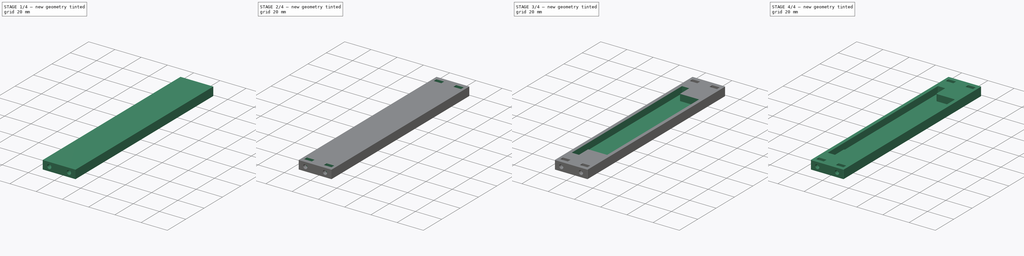
[diagram: build sequence overview — one tinted view per stage of 4, left to right]
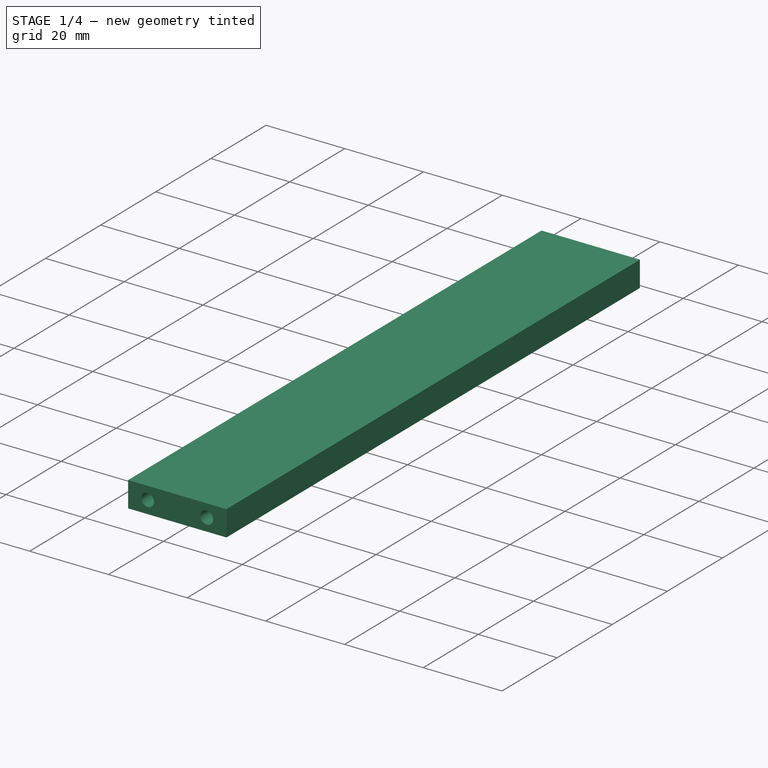
[diagram: stage 1 of 4 — iso view after this stage's code; geometry added in this stage tinted green]
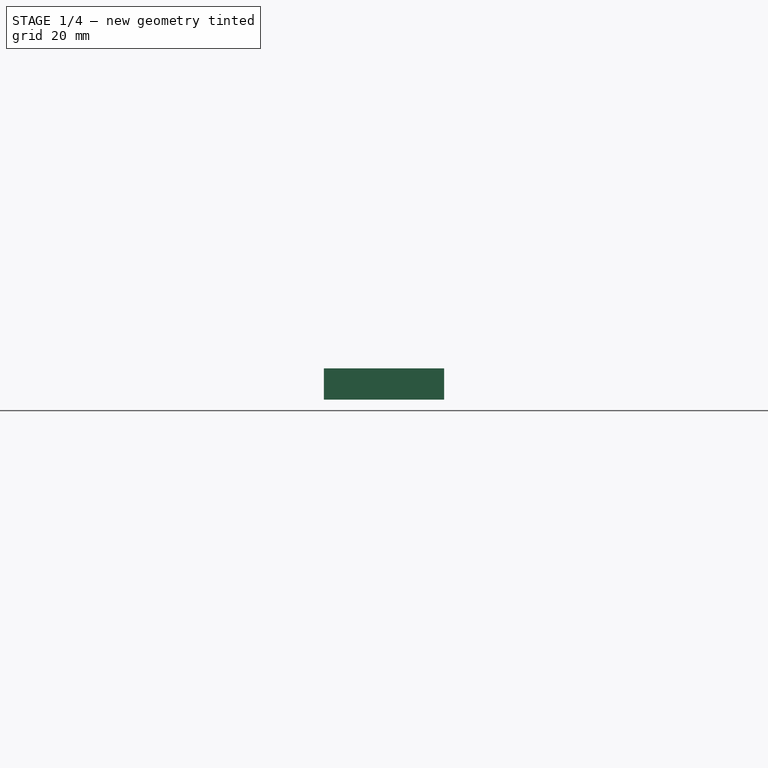
[diagram: stage 1 of 4 — front view after this stage's code; geometry added in this stage tinted green]
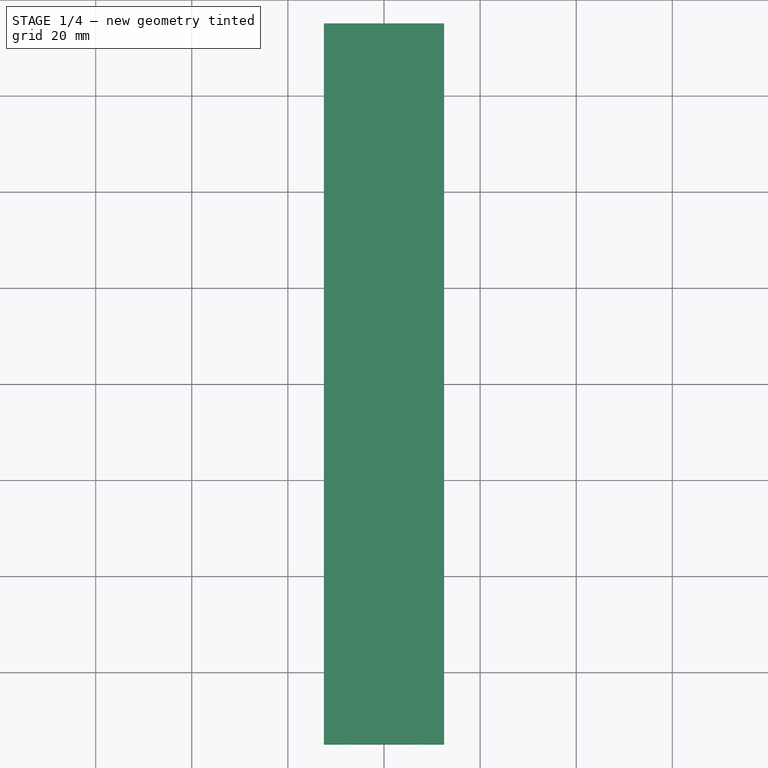
[diagram: stage 1 of 4 — top view after this stage's code; geometry added in this stage tinted green]
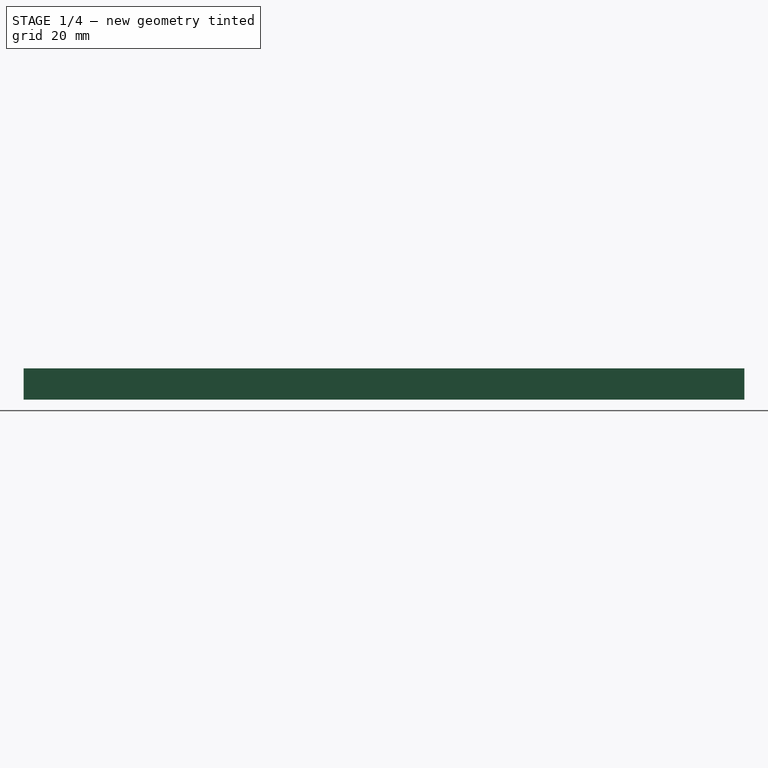
[diagram: stage 1 of 4 — right view after this stage's code; geometry added in this stage tinted green]
FCSTD DOCUMENT  (FreeCAD 0.18R4 (GitTag))
Label: Chassis_Side
License: CreativeCommons Attribution-NonCommercial
LicenseURL: http://creativecommons.org/licenses/by-nc/4.0/
objects: Sketcher::SketchObject×5, PartDesign::Pocket×4, PartDesign::Fillet×4, PartDesign::Pad×1, PartDesign::Body×1
note: 20 computed .brp shape members not serialized (recipe doc carries the construction recipe); baked Part::Feature solids carry a one-line shape summary decoded from their .brp

FEATURE [Sketcher::SketchObject] Sketch
  MapMode = 5
  Support = -> [XY_Plane]
  sketch-geometry (4):
    g0: LineSegment StartX=-12.5 StartY=75 StartZ=0 EndX=12.5 EndY=75 EndZ=0
    g1: LineSegment StartX=12.5 StartY=75 StartZ=0 EndX=12.5 EndY=-75 EndZ=0
    g2: LineSegment StartX=12.5 StartY=-75 StartZ=0 EndX=-12.5 EndY=-75 EndZ=0
    g3: LineSegment StartX=-12.5 StartY=-75 StartZ=0 EndX=-12.5 EndY=75 EndZ=0
  constraints (10):
    c: Coincident(g0,g1)
    c: Coincident(g1,g2)
    c: Coincident(g2,g3)
    c: Coincident(g3,g0)
    c: Horizontal(g2)
    c: Vertical(g3)
    c: Symmetric(g0,g0,g-2)
    c: Symmetric(g1,g0,g-1)
    c: DistanceX(g0,g0) = 25
    c: DistanceY(g1,g0) = 150
FEATURE [PartDesign::Pad] Pad  label="Baseplate"
  Length = 6.5
  Length2 = 100
  Profile = -> Sketch
  Type = 0
FEATURE [Sketcher::SketchObject] Sketch001
  MapMode = 5
  Placement = pos=(0,-75,0) rot=(1,0,0;1.5708rad)
  Support = -> [Pad]
  sketch-geometry (2):
    g0: Circle CenterX=-7.5 CenterY=3.25 CenterZ=0 NormalX=0 NormalY=0 NormalZ=1 AngleXU=0 Radius=1.6
    g1: Circle CenterX=7.5 CenterY=3.25 CenterZ=0 NormalX=0 NormalY=0 NormalZ=1 AngleXU=0 Radius=1.6
  constraints (5):
    c: Symmetric(g0,g1,g-2)
    c: DistanceY(g-1,g0) = 3.25
    c: Equal(g0,g1)
    c: Radius(g1) = 1.6
    c: DistanceX(g0,g1) = 15
FEATURE [PartDesign::Pocket] Pocket  label="Screwholes Front"
  BaseFeature = -> Pad
  Length = 10
  Length2 = 100
  Profile = -> Sketch001
  Type = 0
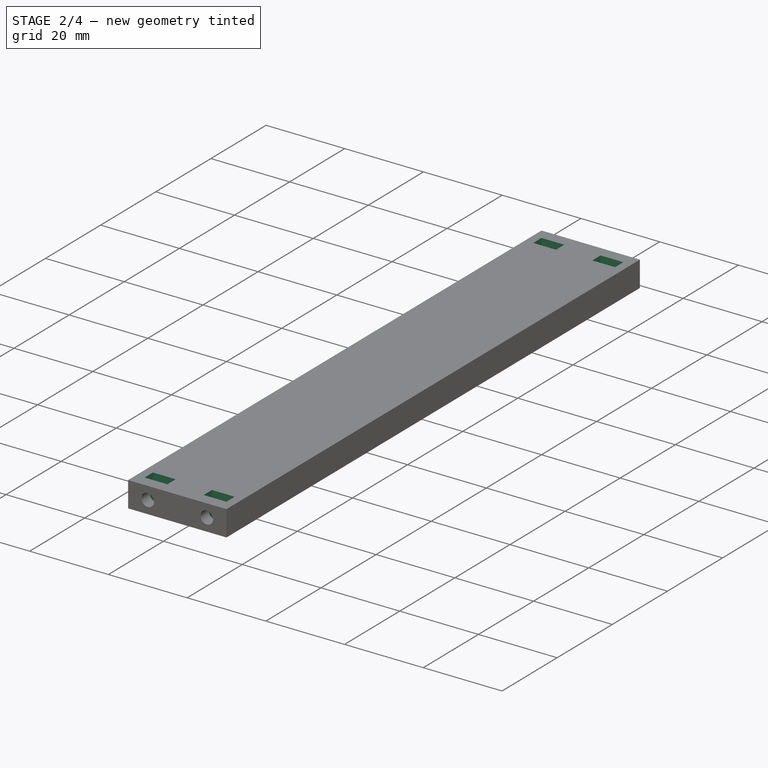
[diagram: stage 2 of 4 — iso view after this stage's code; geometry added in this stage tinted green]
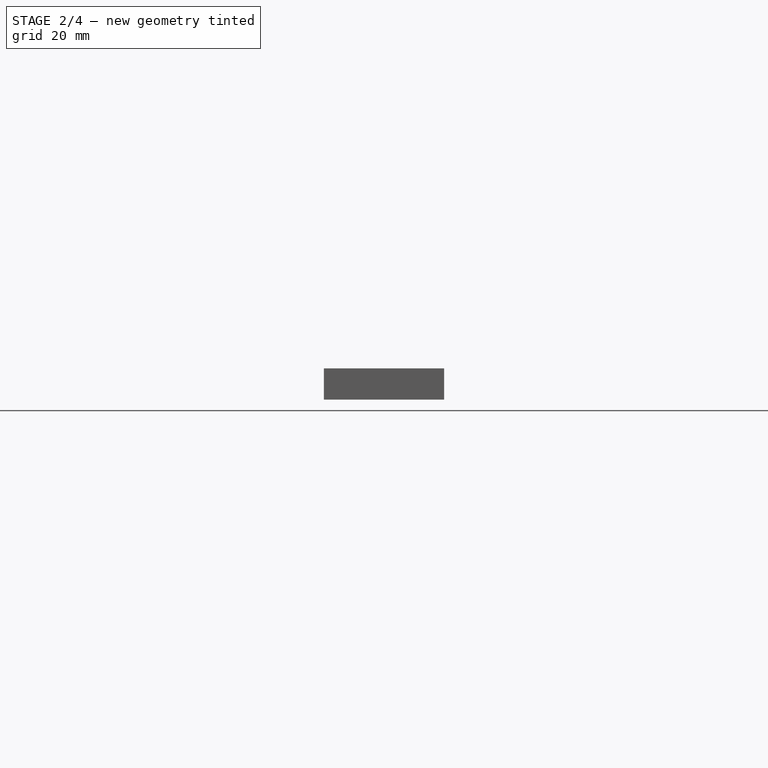
[diagram: stage 2 of 4 — front view after this stage's code; geometry added in this stage tinted green]
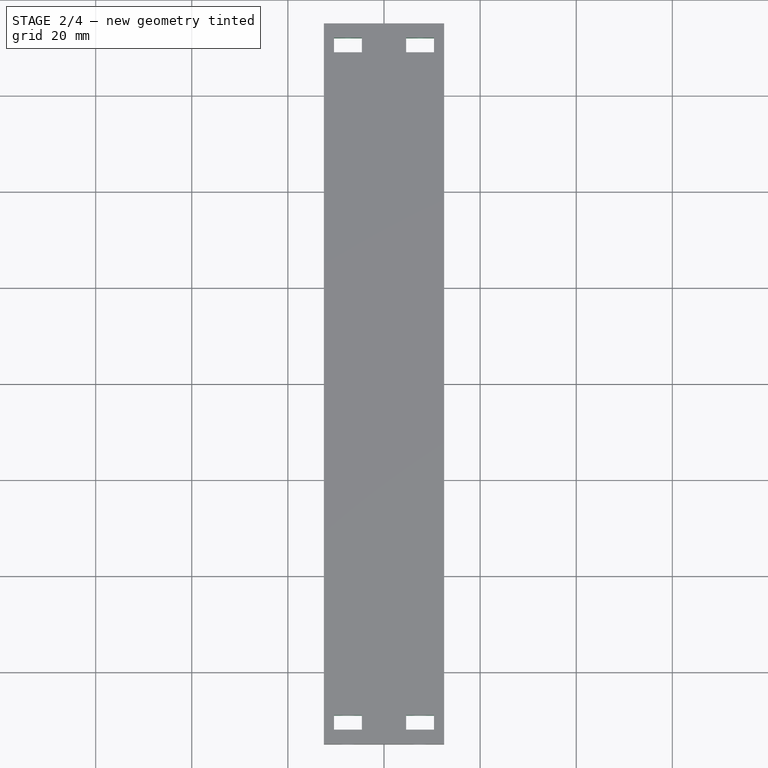
[diagram: stage 2 of 4 — top view after this stage's code; geometry added in this stage tinted green]
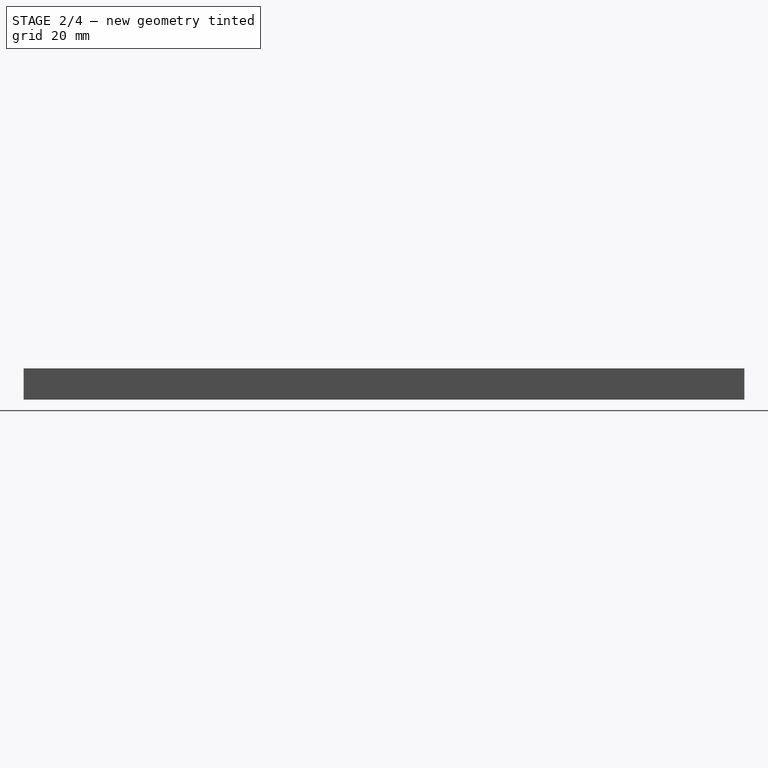
[diagram: stage 2 of 4 — right view after this stage's code; geometry added in this stage tinted green]
FEATURE [Sketcher::SketchObject] Sketch002
  MapMode = 5
  Placement = pos=(0,75,0) rot=(0,0.707107,0.707107;3.14159rad)
  Support = -> [Pocket]
  sketch-geometry (2):
    g0: Circle CenterX=-7.5 CenterY=3.25 CenterZ=0 NormalX=0 NormalY=0 NormalZ=1 AngleXU=0 Radius=1.6
    g1: Circle CenterX=7.5 CenterY=3.25 CenterZ=0 NormalX=0 NormalY=0 NormalZ=1 AngleXU=0 Radius=1.6
  constraints (5):
    c: Symmetric(g1,g0,g-2)
    c: Equal(g0,g1)
    c: DistanceY(g-1,g0) = 3.25
    c: Radius(g1) = 1.6
    c: DistanceX(g0,g1) = 15
FEATURE [PartDesign::Pocket] Pocket001  label="Screwholes Rear"
  BaseFeature = -> Pocket
  Length = 10
  Length2 = 100
  Profile = -> Sketch002
  Type = 0
FEATURE [Sketcher::SketchObject] Sketch003
  MapMode = 5
  Placement = pos=(0,0,6.5) rot=(0,0,1;0rad)
  Support = -> [Pocket001]
  sketch-geometry (16):
    g0: LineSegment StartX=-10.4 StartY=72 StartZ=0 EndX=-4.6 EndY=72 EndZ=0
    g1: LineSegment StartX=-4.6 StartY=72 StartZ=0 EndX=-4.6 EndY=69 EndZ=0
    g2: LineSegment StartX=-4.6 StartY=69 StartZ=0 EndX=-10.4 EndY=69 EndZ=0
    g3: LineSegment StartX=-10.4 StartY=69 StartZ=0 EndX=-10.4 EndY=72 EndZ=0
    g4: LineSegment StartX=4.6 StartY=72 StartZ=0 EndX=10.4 EndY=72 EndZ=0
    g5: LineSegment StartX=10.4 StartY=72 StartZ=0 EndX=10.4 EndY=69 EndZ=0
    g6: LineSegment StartX=10.4 StartY=69 StartZ=0 EndX=4.6 EndY=69 EndZ=0
    g7: LineSegment StartX=4.6 StartY=69 StartZ=0 EndX=4.6 EndY=72 EndZ=0
    g8: LineSegment StartX=-10.4 StartY=-69 StartZ=0 EndX=-4.6 EndY=-69 EndZ=0
    g9: LineSegment StartX=-4.6 StartY=-69 StartZ=0 EndX=-4.6 EndY=-72 EndZ=0
    g10: LineSegment StartX=-4.6 StartY=-72 StartZ=0 EndX=-10.4 EndY=-72 EndZ=0
    g11: LineSegment StartX=-10.4 StartY=-72 StartZ=0 EndX=-10.4 EndY=-69 EndZ=0
    g12: LineSegment StartX=4.6 StartY=-69 StartZ=0 EndX=10.4 EndY=-69 EndZ=0
    g13: LineSegment StartX=10.4 StartY=-69 StartZ=0 EndX=10.4 EndY=-72 EndZ=0
    g14: LineSegment StartX=10.4 StartY=-72 StartZ=0 EndX=4.6 EndY=-72 EndZ=0
    g15: LineSegment StartX=4.6 StartY=-72 StartZ=0 EndX=4.6 EndY=-69 EndZ=0
  constraints (45):
    c: Coincident(g0,g1)
    c: Coincident(g1,g2)
    c: Coincident(g2,g3)
    c: Coincident(g3,g0)
    c: Horizontal(g0)
    c: Horizontal(g2)
    c: Vertical(g1)
    c: Vertical(g3)
    c: Coincident(g4,g5)
    c: Coincident(g5,g6)
    c: Coincident(g6,g7)
    c: Coincident(g7,g4)
    c: Horizontal(g4)
    c: Horizontal(g6)
    c: Vertical(g5)
    c: Vertical(g7)
    c: Coincident(g8,g9)
    c: Coincident(g9,g10)
    c: Coincident(g10,g11)
    c: Coincident(g11,g8)
    c: Horizontal(g8)
    c: Horizontal(g10)
    c: Vertical(g9)
    c: Vertical(g11)
    c: Coincident(g12,g13)
    c: Coincident(g13,g14)
    c: Coincident(g14,g15)
    c: Coincident(g15,g12)
    c: Horizontal(g12)
    c: Horizontal(g14)
    c: Vertical(g13)
    c: Vertical(g15)
    c: Symmetric(g9,g14,g-2)
    c: Symmetric(g0,g4,g-2)
    c: Equal(g3,g5)
    c: Equal(g5,g13)
    c: Equal(g13,g11)
    c: Equal(g10,g14)
    c: Equal(g14,g0)
    c: Equal(g0,g4)
    c: DistanceX(g4,g4) = 5.8
    c: DistanceY(g3,g3) = 3
    c: DistanceY(g-1,g4) = 72
    c: DistanceX(g0,g4) = 9.2
    c: Symmetric(g12,g5,g-1)
FEATURE [PartDesign::Pocket] Pocket002  label="Nutholes Front and Rear"
  BaseFeature = -> Pocket001
  Length = 6.5
  Length2 = 100
  Profile = -> Sketch003
  Type = 0
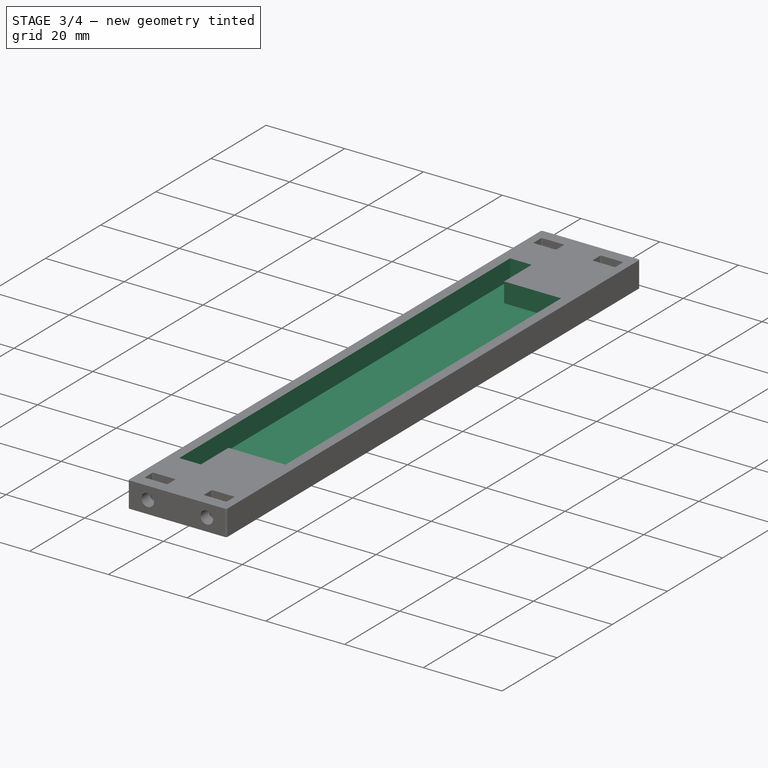
[diagram: stage 3 of 4 — iso view after this stage's code; geometry added in this stage tinted green]
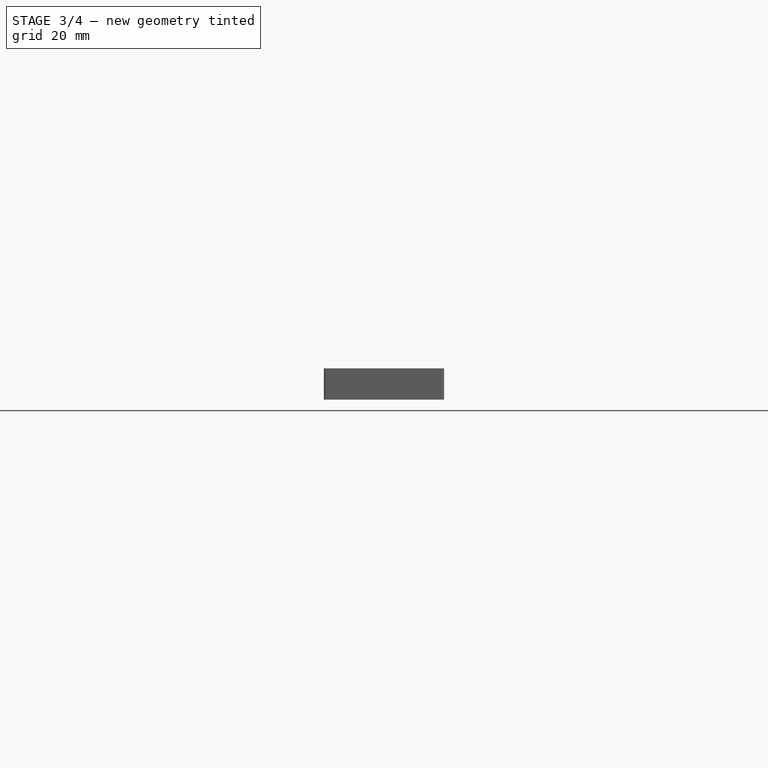
[diagram: stage 3 of 4 — front view after this stage's code; geometry added in this stage tinted green]
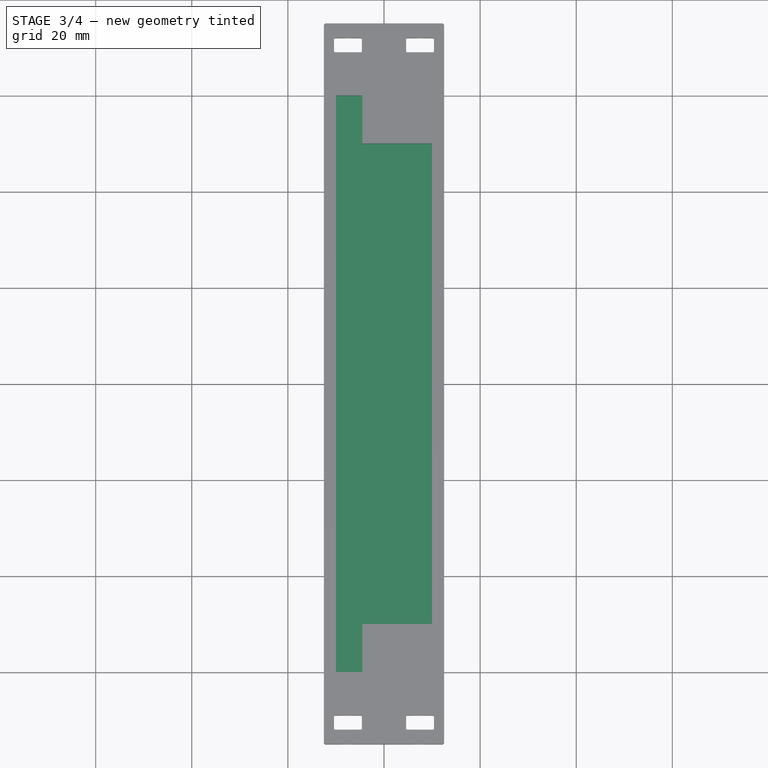
[diagram: stage 3 of 4 — top view after this stage's code; geometry added in this stage tinted green]
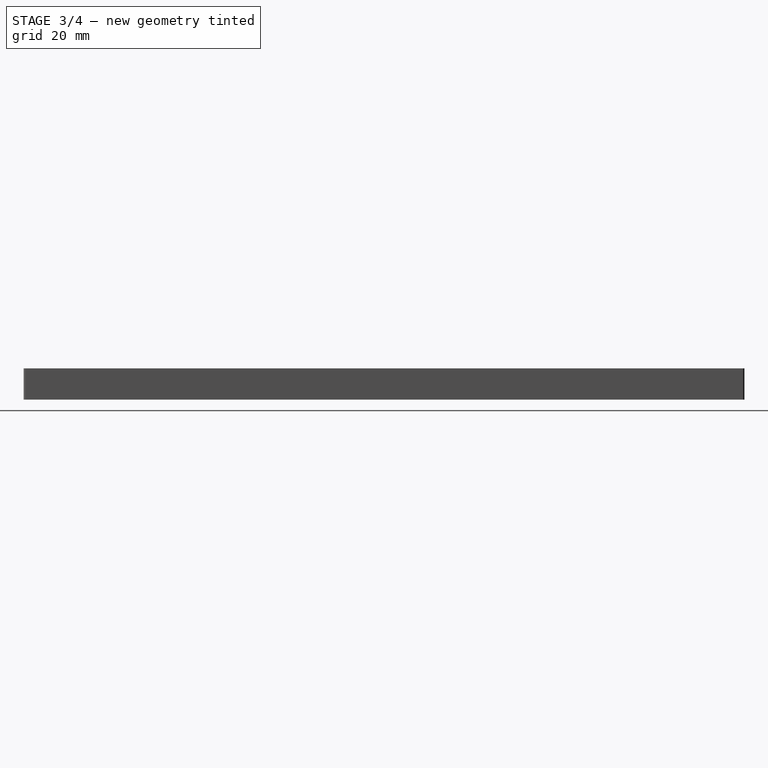
[diagram: stage 3 of 4 — right view after this stage's code; geometry added in this stage tinted green]
FEATURE [PartDesign::Fillet] Fillet  label="Smooth Baseplate Corners"
  Base = -> Pocket002 [Edge7,Edge46,Edge4,Edge1]
  BaseFeature = -> Pocket002
  Radius = 0.4
FEATURE [PartDesign::Fillet] Fillet001  label="Smooth Nuthole Corners"
  Base = -> Fillet [Edge77,Edge82,Edge71,Edge65,Edge72,Edge66,Edge78,Edge83,Edge84,Edge79,Edge68,Edge74,Edge75,Edge69,Edge80,Edge85]
  BaseFeature = -> Fillet
  Radius = 0.2
FEATURE [Sketcher::SketchObject] Sketch004
  MapMode = 5
  Placement = pos=(0,0,6.5) rot=(0,0,1;0rad)
  Support = -> [Fillet001]
  sketch-geometry (8):
    g0: LineSegment StartX=-10 StartY=-60 StartZ=0 EndX=-10 EndY=60 EndZ=0
    g1: LineSegment StartX=-10 StartY=60 StartZ=0 EndX=-4.5 EndY=60 EndZ=0
    g2: LineSegment StartX=-4.5 StartY=60 StartZ=0 EndX=-4.5 EndY=50 EndZ=0
    g3: LineSegment StartX=-4.5 StartY=50 StartZ=0 EndX=10 EndY=50 EndZ=0
    g4: LineSegment StartX=10 StartY=50 StartZ=0 EndX=10 EndY=-50 EndZ=0
    g5: LineSegment StartX=10 StartY=-50 StartZ=0 EndX=-4.5 EndY=-50 EndZ=0
    g6: LineSegment StartX=-4.5 StartY=-50 StartZ=0 EndX=-4.5 EndY=-60 EndZ=0
    g7: LineSegment StartX=-4.5 StartY=-60 StartZ=0 EndX=-10 EndY=-60 EndZ=0
  constraints (22):
    c: Coincident(g0,g1)
    c: Horizontal(g1)
    c: Coincident(g1,g2)
    c: Vertical(g2)
    c: Coincident(g2,g3)
    c: Horizontal(g3)
    c: Coincident(g3,g4)
    c: Coincident(g4,g5)
    c: Coincident(g5,g6)
    c: Vertical(g6)
    c: Coincident(g6,g7)
    c: Coincident(g7,g0)
    c: Equal(g2,g6)
    c: Equal(g3,g5)
    c: Symmetric(g2,g5,g-1)
    c: Symmetric(g3,g4,g-1)
    c: Symmetric(g0,g0,g-1)
    c: DistanceY(g0,g0) = 120
    c: DistanceX(g1,g1) = 5.5
    c: DistanceX(g1,g-1) = 4.5
    c: DistanceX(g-1,g3) = 10
    c: DistanceY(g2,g2) = 10
FEATURE [PartDesign::Pocket] Pocket003  label="Circuitboard Mount"
  BaseFeature = -> Fillet001
  Length = 5
  Length2 = 100
  Profile = -> Sketch004
  Type = 0
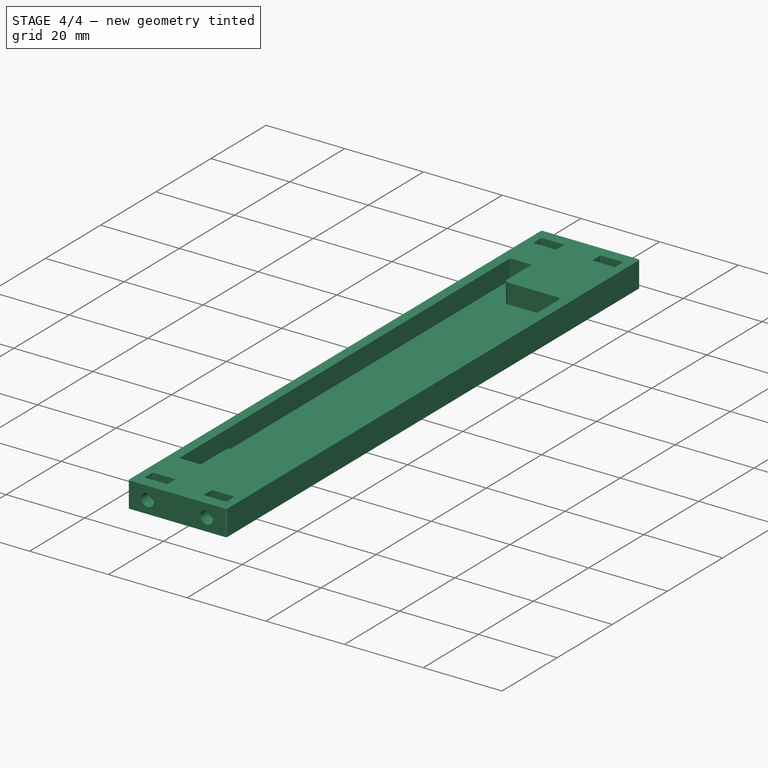
[diagram: stage 4 of 4 — iso view after this stage's code; geometry added in this stage tinted green]
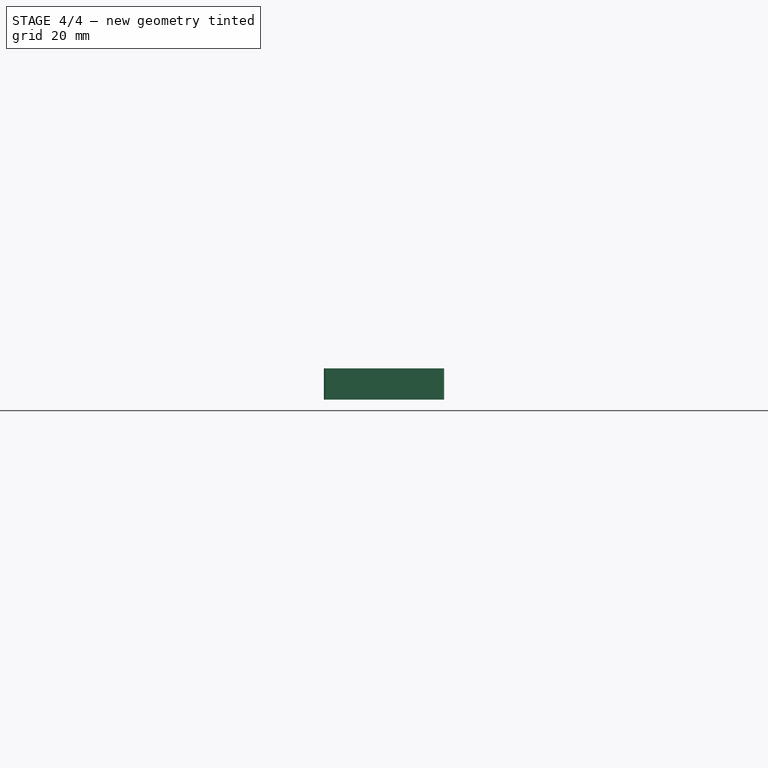
[diagram: stage 4 of 4 — front view after this stage's code; geometry added in this stage tinted green]
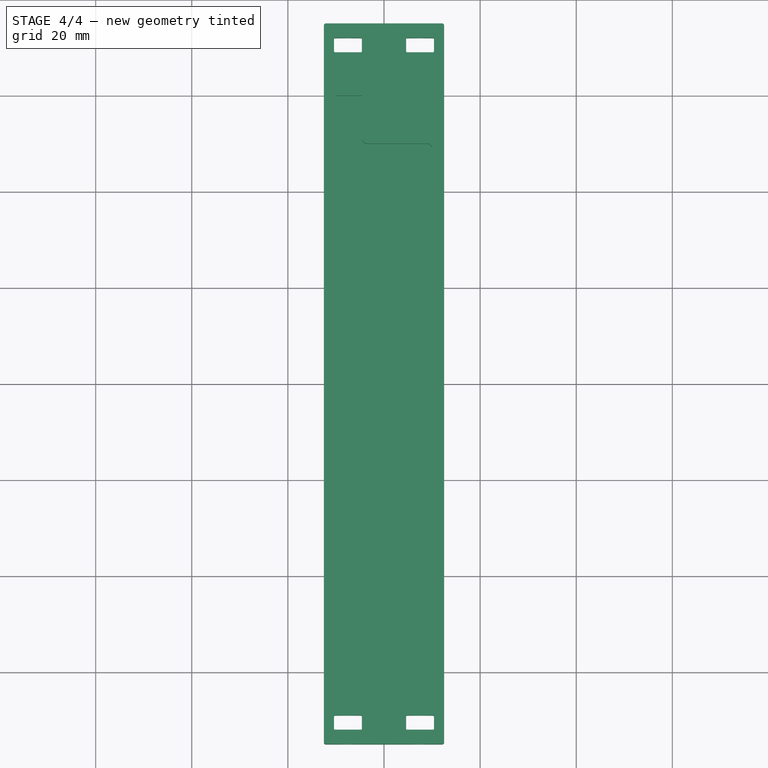
[diagram: stage 4 of 4 — top view after this stage's code; geometry added in this stage tinted green]
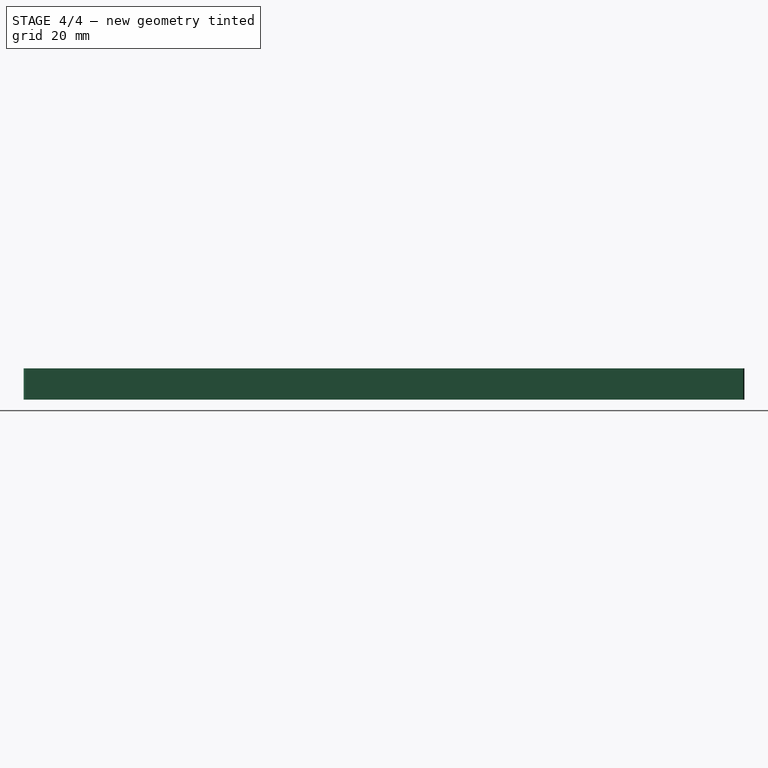
[diagram: stage 4 of 4 — right view after this stage's code; geometry added in this stage tinted green]
FEATURE [PartDesign::Fillet] Fillet002  label="Smooth Circuitboard Mount Top Corners"
  Base = -> Pocket003 [Edge158,Edge160,Edge164,Edge162]
  BaseFeature = -> Pocket003
  Radius = 1
FEATURE [PartDesign::Fillet] Fillet003  label="Smooth Circuitboard Mount Bottom Corners"
  Base = -> Fillet002 [Edge54,Edge58,Edge66,Edge62]
  BaseFeature = -> Fillet002
  Radius = 0.2
FEATURE [PartDesign::Body] Body  label="Chassis_Side"
  Group = -> [Sketch,Pad,Sketch001,Pocket,Sketch002,Pocket001,Sketch003,Pocket002,Fillet,Fillet001,Sketch004,Pocket003,Fillet002,Fillet003]
  Origin = -> Origin
  Tip = -> Fillet003
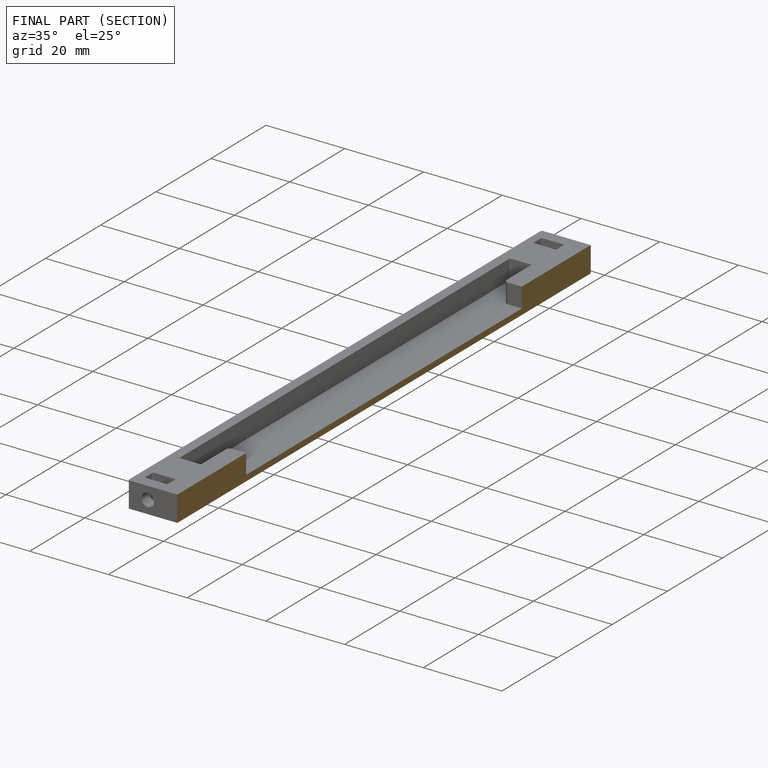
[diagram: finished part — half-section view (interior)]
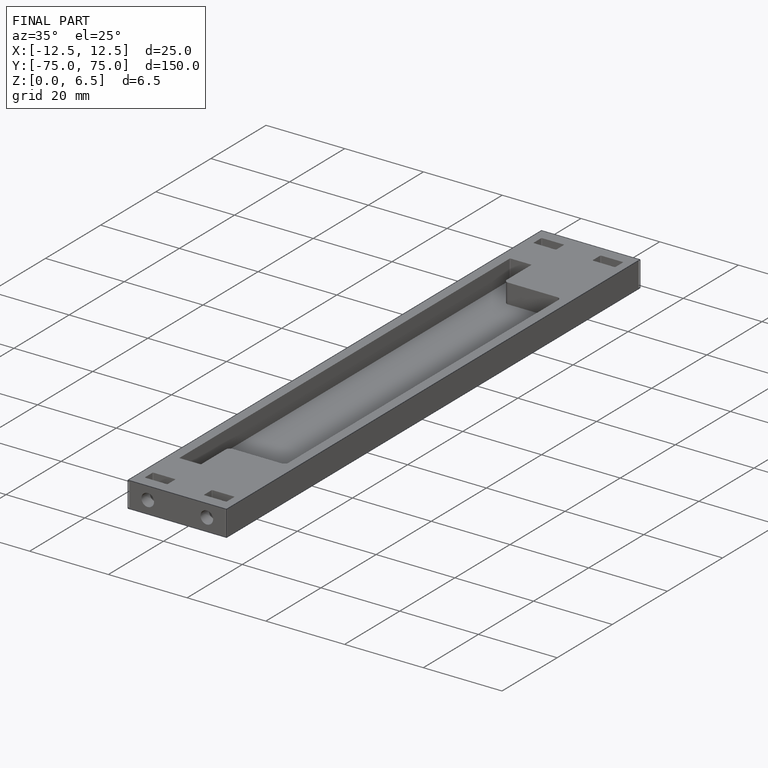
[diagram: finished part — iso view with bounding-box wireframe]
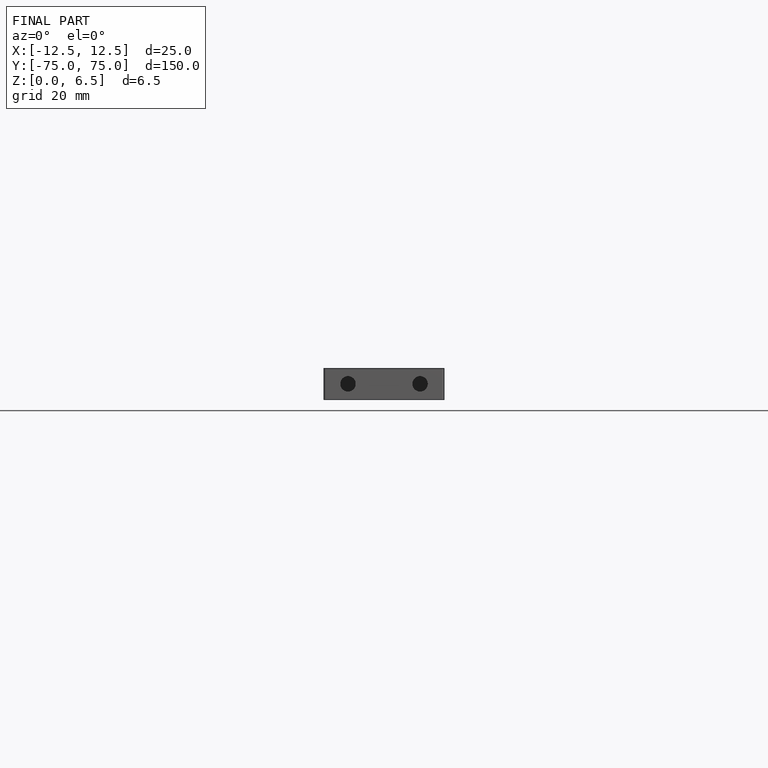
[diagram: finished part — front view with bounding-box wireframe]
